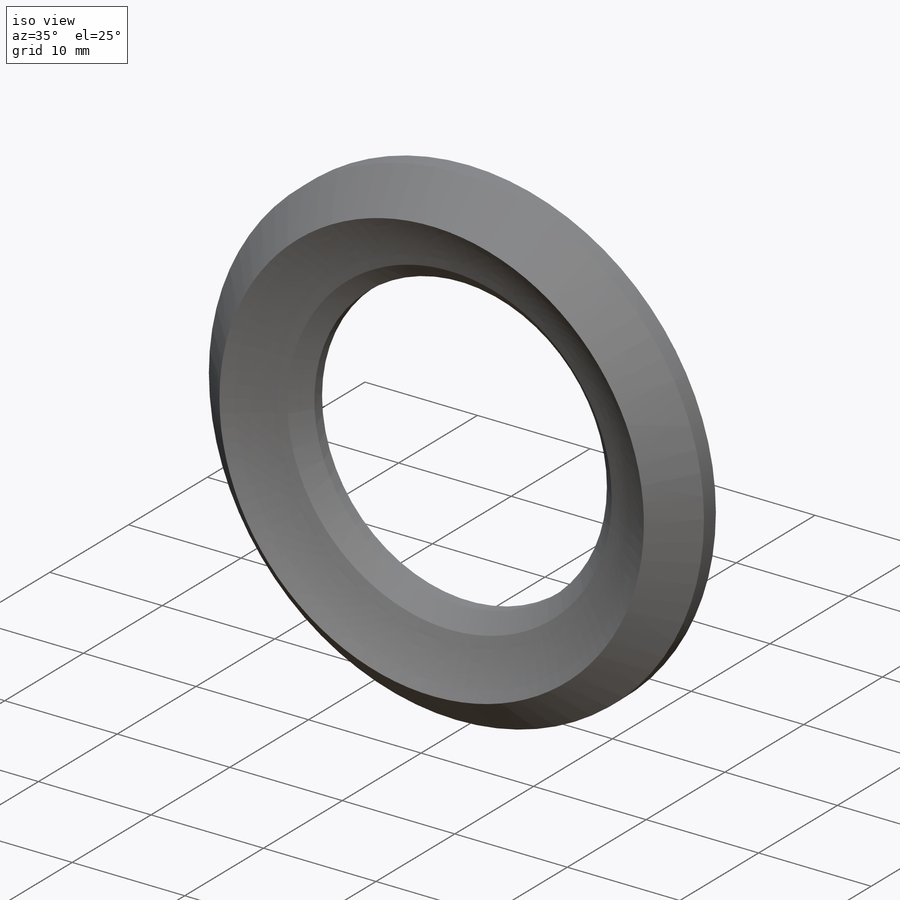
[diagram: iso view]
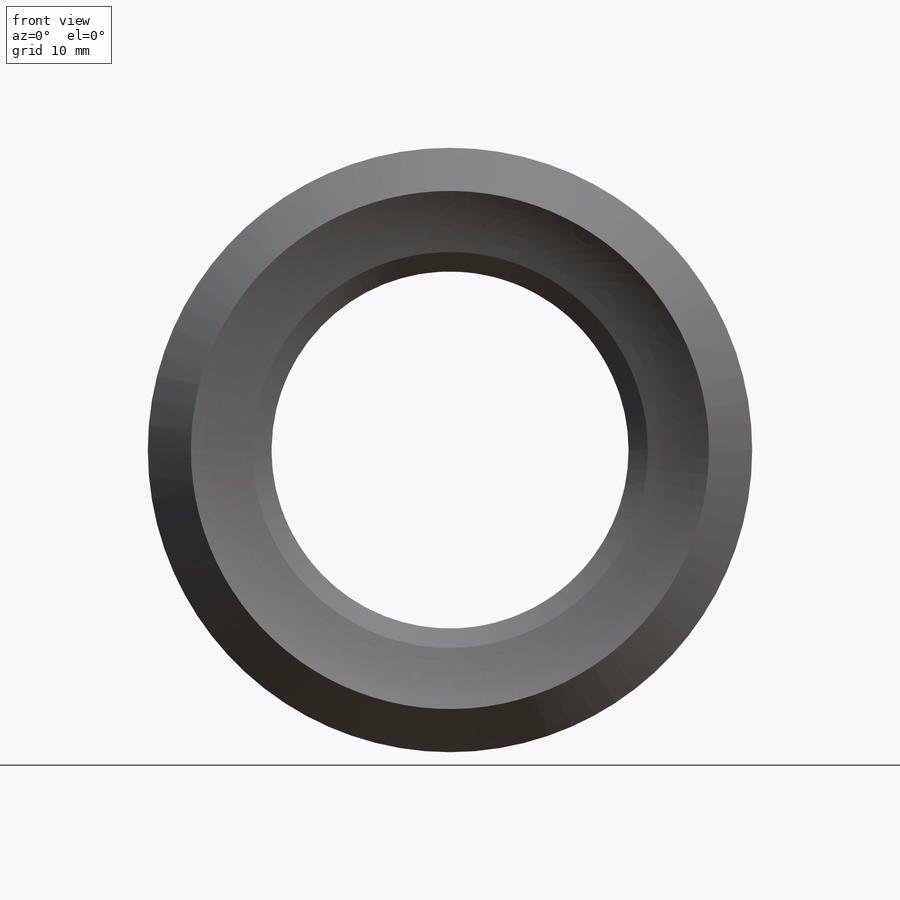
[diagram: front view]
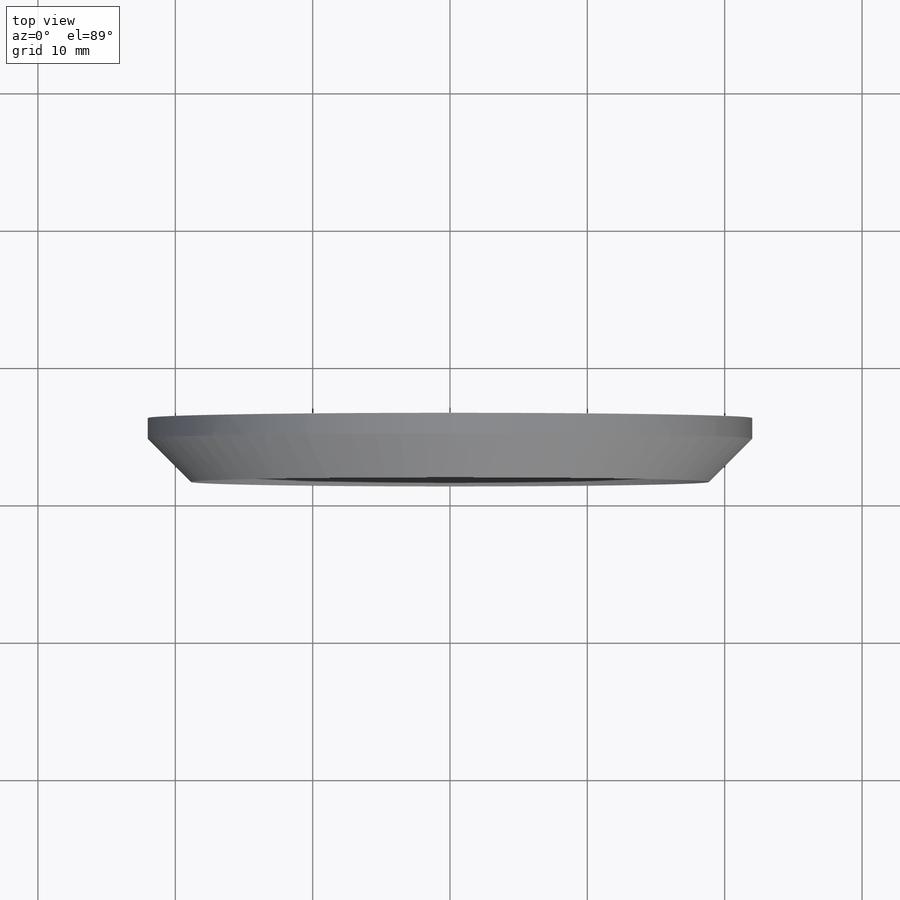
[diagram: top view]
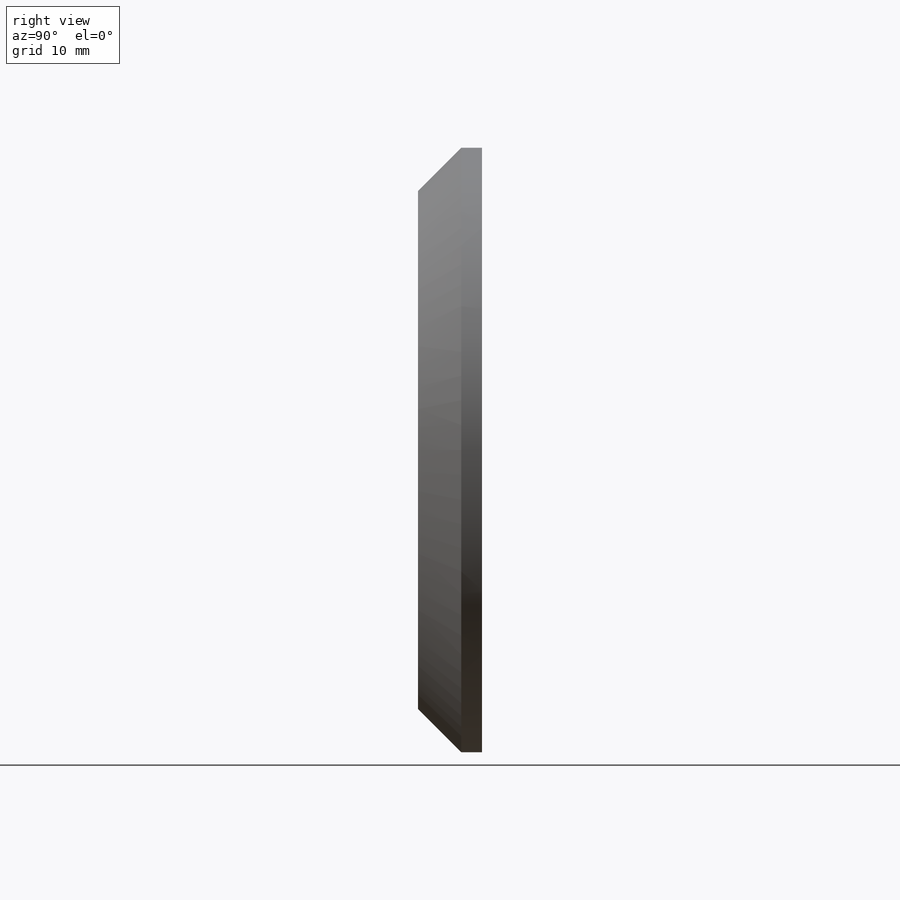
[diagram: right view]
SOLIDWORKS PART (.sldprt)
format: sldprt  version: not decoded by parser v0  size: 234,496 bytes
history: native  units: mm
features: plane x3, sketch x3, material x1, revolve x1, hole x1, mirror x1, chamfer x1 (+9 scaffold rows collapsed)
feature tree (20):
  scaffold x9  (default folders/planes/origin — collapsed)
  material  "PVC hart"
  plane  "Ebene vorne"
  plane  "Ebene oben"
  plane  "Ebene rechts"
  sketch  "Skizze2"  dims[c1.D1=~2.119968mm c2.D1=135.0deg c3.D1=0.7mm]
  revolve  "Rotation1"  Angle=360deg
  hole  "Formsenkung für M3 Senkschraube mit Innensechskant1"  Diameter=1.6mm Depth=12mm
  sketch  "Skizze3"  dims[c1.D1=~16.530117mm c2.D1=22.5deg c2.D2=~15.271836mm c3.D2=45.0deg c3.D3=2.5mm]
  sketch  "Skizze4"  dims[Bohrerdurchmesser=1.6mm Bohrungstiefe=12.0mm Senkdurchmesser (Oben)=3.9mm Senkwinkel (Oben)=90.0deg Spitzenwinkel=118.0deg]
  mirror  "Spiegeln1"
  chamfer  "Fase2"  Distance=1mm Angle=45deg
decode coverage: 6 of 7 modeling features carry decoded parameters
note: ~ marks probable driven/reference dimensions
note: suppression state not decoded; provenance and decode notes live in map.json
